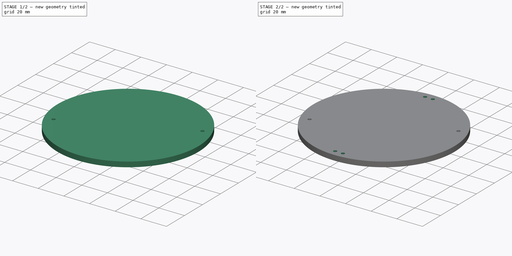
[diagram: build sequence overview — one tinted view per stage of 2, left to right]
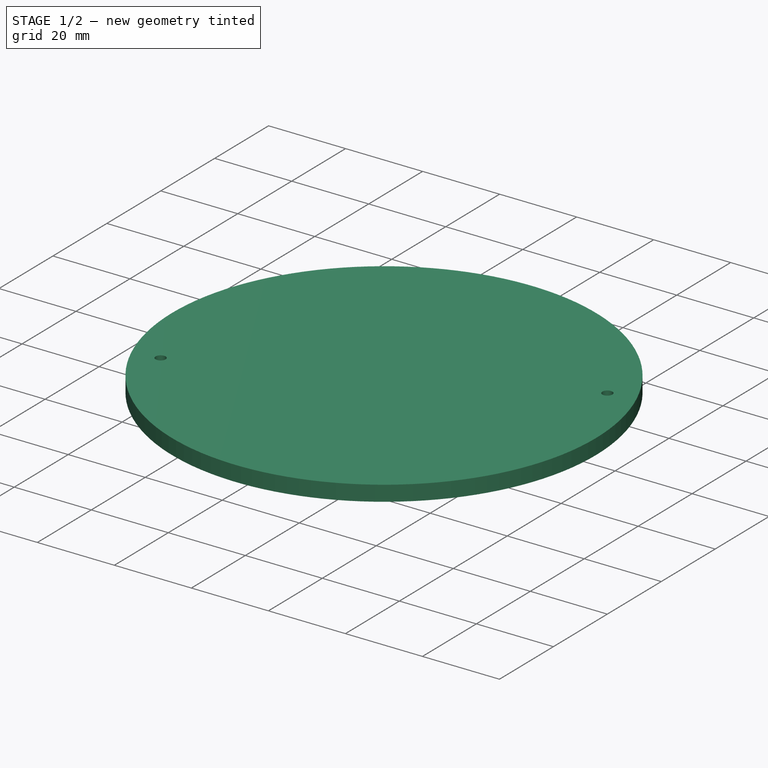
[diagram: stage 1 of 2 — iso view after this stage's code; geometry added in this stage tinted green]
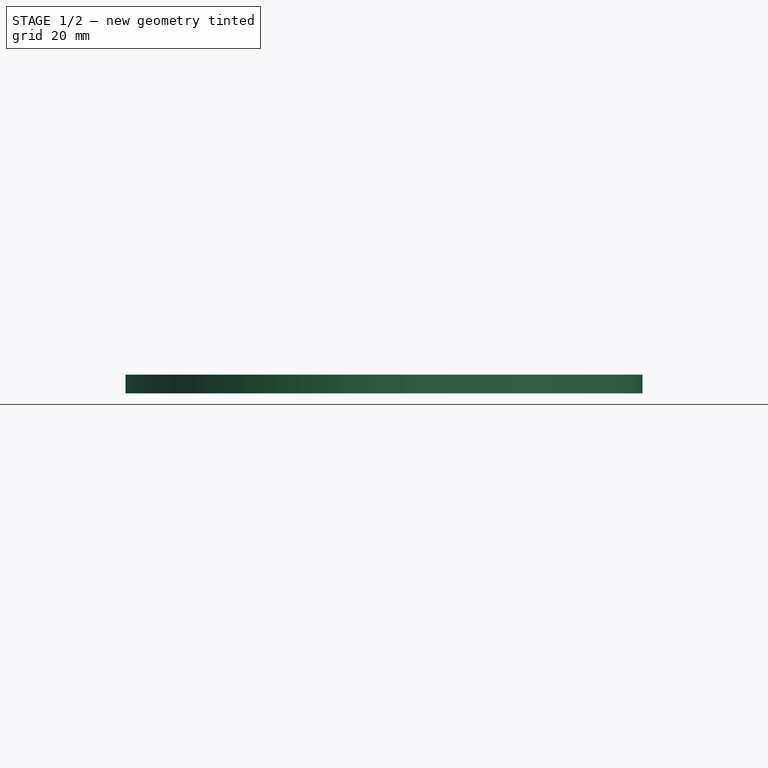
[diagram: stage 1 of 2 — front view after this stage's code; geometry added in this stage tinted green]
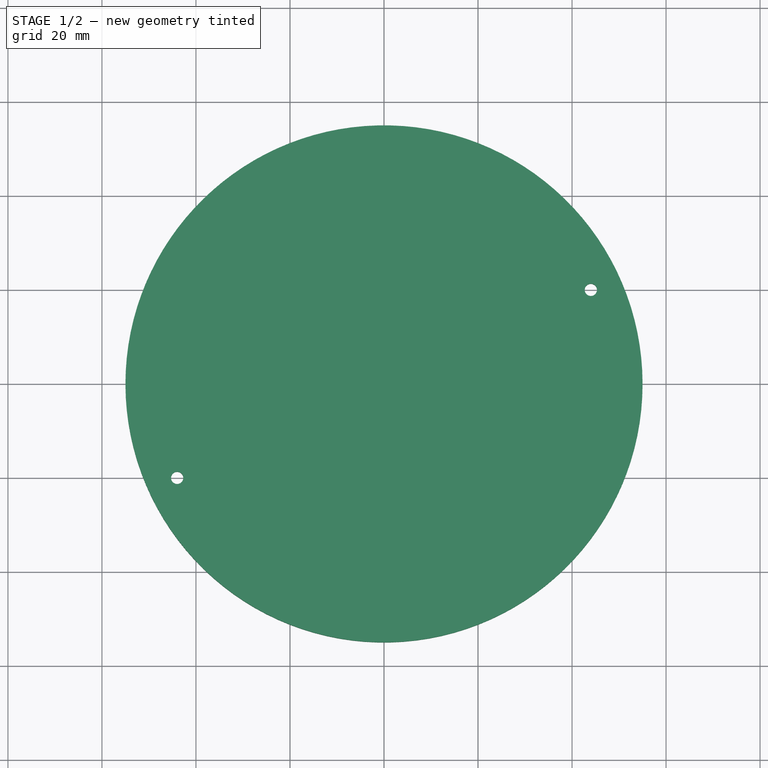
[diagram: stage 1 of 2 — top view after this stage's code; geometry added in this stage tinted green]
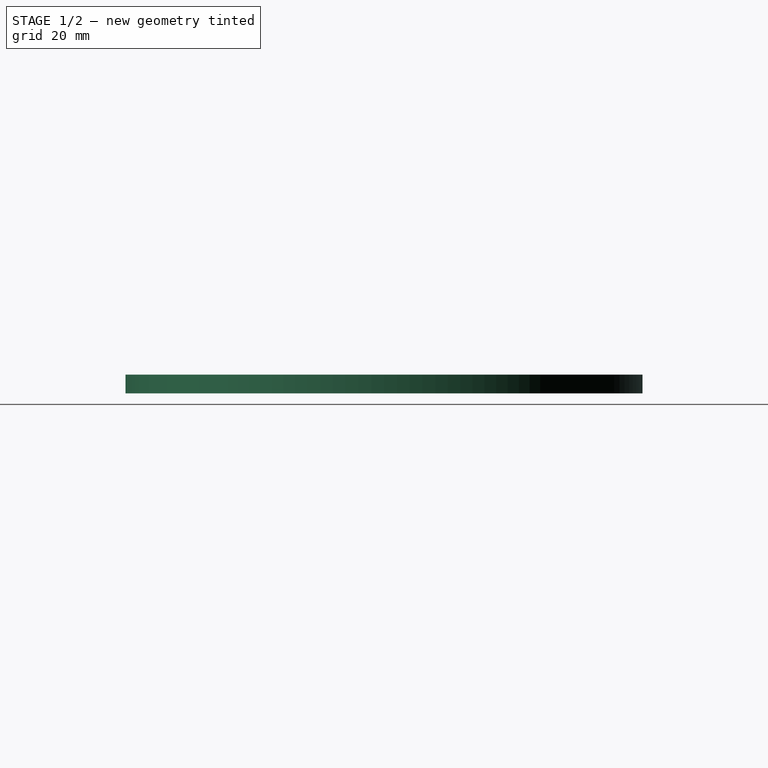
[diagram: stage 1 of 2 — right view after this stage's code; geometry added in this stage tinted green]
FCSTD DOCUMENT  (FreeCAD 0.21R33668 +26 (Git))
Label: board_top
License: All rights reserved
LicenseURL: https://en.wikipedia.org/wiki/All_rights_reserved
objects: Sketcher::SketchObject×3, PartDesign::Pocket×2, PartDesign::Pad×1, PartDesign::Body×1
note: 10 computed .brp shape members not serialized (recipe doc carries the construction recipe); baked Part::Feature solids carry a one-line shape summary decoded from their .brp

FEATURE [Sketcher::SketchObject] Sketch
  FullyConstrained = false
  MapMode = 5
  Support = -> [XY_Plane]
  sketch-geometry (2):
    g0: Circle CenterX=0 CenterY=0 CenterZ=0 NormalX=0 NormalY=0 NormalZ=1 AngleXU=0 Radius=55
    g1: GeomPoint X=-46.4818 Y=29.4015 Z=0
  constraints (3):
    c: Coincident(g0,g-1)
    c: PointOnObject(g1,g0)
    c: Distance(g1,g0) = 55
FEATURE [PartDesign::Pad] Pad
  Direction = (0,0,1)
  Length = 4
  Length2 = 10
  Profile = -> Sketch
  ReferenceAxis = -> Sketch [N_Axis]
  Type = 0
FEATURE [Sketcher::SketchObject] Sketch003
  FullyConstrained = false
  MapMode = 5
  Placement = pos=(0,0,4) rot=(0,0,1;0rad)
  sketch-geometry (10):
    g0: Circle CenterX=44 CenterY=20 CenterZ=0 NormalX=0 NormalY=0 NormalZ=1 AngleXU=0 Radius=5
    g1: Circle CenterX=-44 CenterY=-20 CenterZ=0 NormalX=0 NormalY=0 NormalZ=1 AngleXU=0 Radius=5
    g2: GeomPoint X=-39.0947 Y=-19.0316 Z=0
    g3: GeomPoint X=47.6682 Y=23.3977 Z=0
    g4: LineSegment StartX=0 StartY=-20 StartZ=0 EndX=-44 EndY=-20 EndZ=0
    g5: LineSegment StartX=0 StartY=20 StartZ=0 EndX=44 EndY=20 EndZ=0
    g6: Circle CenterX=-44 CenterY=-20 CenterZ=0 NormalX=0 NormalY=0 NormalZ=1 AngleXU=0 Radius=1.3
    g7: GeomPoint X=-43.3125 Y=-18.8967 Z=0
    g8: Circle CenterX=44 CenterY=20 CenterZ=0 NormalX=0 NormalY=0 NormalZ=1 AngleXU=0 Radius=1.3
    g9: GeomPoint X=43.0923 Y=20.9307 Z=0
  constraints (20):
    c: PointOnObject(g2,g1)
    c: PointOnObject(g3,g0)
    c: Distance(g3,g0) = 5
    c: Distance(g1,g2) = 5
    c: PointOnObject(g4,g-2)
    c: Coincident(g4,g1)
    c: Horizontal(g4)
    c: PointOnObject(g5,g-2)
    c: Coincident(g5,g0)
    c: Horizontal(g5)
    c: Distance(g4) = 44
    c: Distance(g5) = 44
    c: Distance(g5,g-1) = 20
    c: Distance(g-1,g4) = 20
    c: Coincident(g6,g1)
    c: PointOnObject(g7,g6)
    c: Coincident(g8,g0)
    c: PointOnObject(g9,g8)
    c: Distance(g9,g8) = 1.3
    c: Distance(g7,g6) = 1.3
FEATURE [PartDesign::Pocket] Pocket001
  BaseFeature = -> Pad
  Direction = (0,0,-1)
  Length = 5
  Length2 = 5
  Profile = -> Sketch003
  ReferenceAxis = -> Sketch003 [N_Axis]
  Type = 0
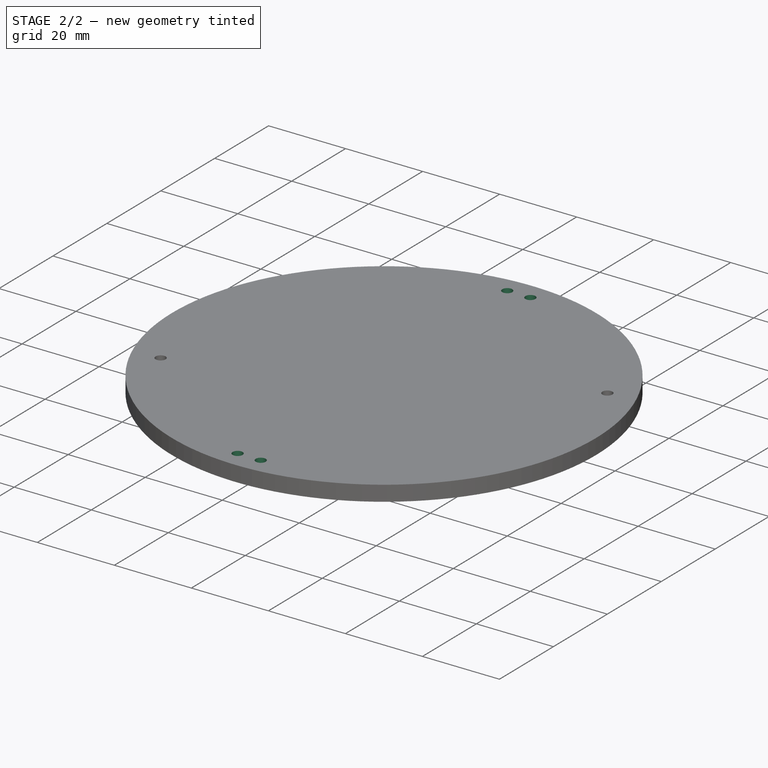
[diagram: stage 2 of 2 — iso view after this stage's code; geometry added in this stage tinted green]
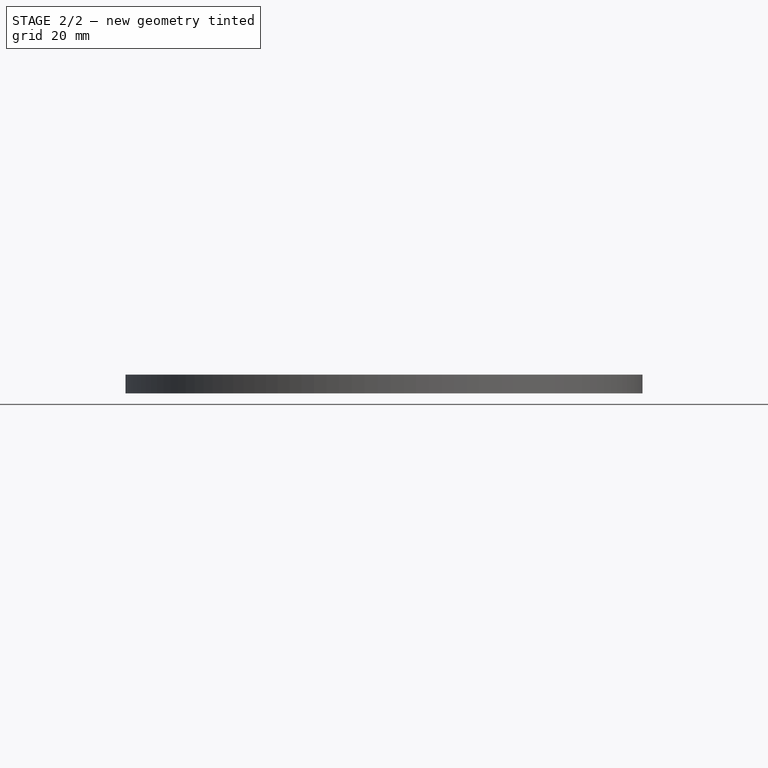
[diagram: stage 2 of 2 — front view after this stage's code; geometry added in this stage tinted green]
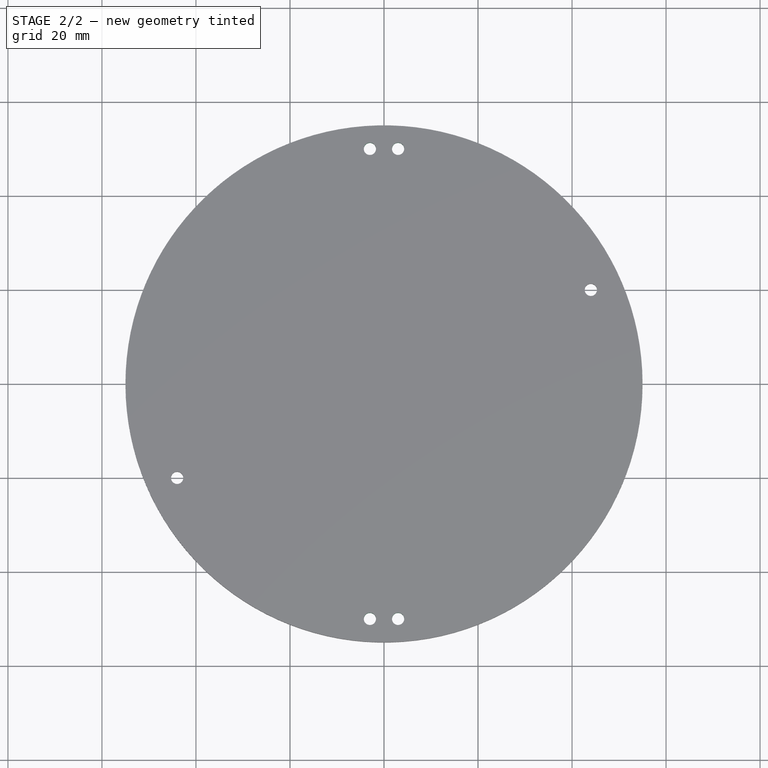
[diagram: stage 2 of 2 — top view after this stage's code; geometry added in this stage tinted green]
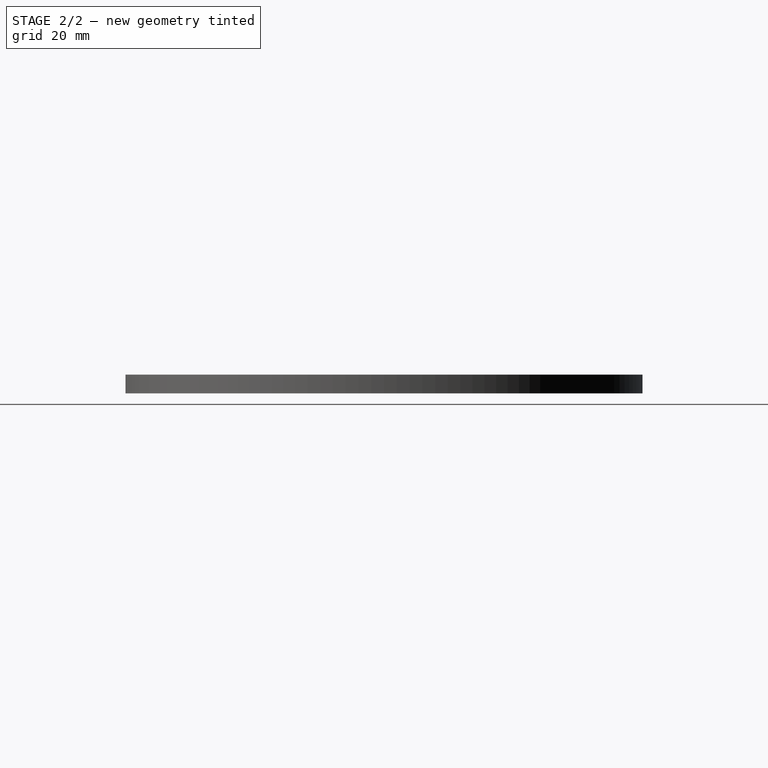
[diagram: stage 2 of 2 — right view after this stage's code; geometry added in this stage tinted green]
FEATURE [Sketcher::SketchObject] Sketch004
  FullyConstrained = false
  MapMode = 5
  Placement = pos=(0,0,4) rot=(0,0,1;0rad)
  Support = -> [Pocket001]
  sketch-geometry (14):
    g0: GeomPoint X=0 Y=50 Z=0
    g1: GeomPoint X=0 Y=-50 Z=0
    g2: LineSegment StartX=0 StartY=-50 StartZ=0 EndX=3 EndY=-50 EndZ=0
    g3: LineSegment StartX=0 StartY=-50 StartZ=0 EndX=-3 EndY=-50 EndZ=0
    g4: Circle CenterX=3 CenterY=-50 CenterZ=0 NormalX=0 NormalY=0 NormalZ=1 AngleXU=0 Radius=1.3
    g5: Circle CenterX=-3 CenterY=-50 CenterZ=0 NormalX=0 NormalY=0 NormalZ=1 AngleXU=0 Radius=1.3
    g6: GeomPoint X=-1.99174 Y=-49.1794 Z=0
    g7: GeomPoint X=2.30947 Y=-48.8986 Z=0
    g8: LineSegment StartX=0 StartY=50 StartZ=0 EndX=-3 EndY=50 EndZ=0
    g9: LineSegment StartX=0 StartY=50 StartZ=0 EndX=3 EndY=50 EndZ=0
    g10: Circle CenterX=-3 CenterY=50 CenterZ=0 NormalX=0 NormalY=0 NormalZ=1 AngleXU=0 Radius=1.3
    g11: Circle CenterX=3 CenterY=50 CenterZ=0 NormalX=0 NormalY=0 NormalZ=1 AngleXU=0 Radius=1.3
    g12: GeomPoint X=-2.06421 Y=50.9024 Z=0
    g13: GeomPoint X=2.70521 Y=51.2661 Z=0
  constraints (28):
    c: PointOnObject(g0,g-2)
    c: PointOnObject(g1,g-2)
    c: Distance(g0,g-1) = 50
    c: Distance(g1,g-1) = 50
    c: Coincident(g2,g1)
    c: Horizontal(g2)
    c: Coincident(g3,g2)
    c: Horizontal(g3)
    c: Distance(g2) = 3
    c: Distance(g3) = 3
    c: Coincident(g4,g2)
    c: Coincident(g5,g3)
    c: PointOnObject(g6,g5)
    c: PointOnObject(g7,g4)
    c: Distance(g5,g6) = 1.3
    c: Distance(g7,g4) = 1.3
    c: Coincident(g8,g0)
    c: Coincident(g9,g8)
    c: Horizontal(g8)
    c: Horizontal(g9)
    c: Coincident(g10,g8)
    c: Coincident(g11,g9)
    c: Distance(g9) = 3
    c: Distance(g8) = 3
    c: PointOnObject(g12,g10)
    c: PointOnObject(g13,g11)
    c: Distance(g10,g12) = 1.3
    c: Distance(g13,g11) = 1.3
FEATURE [PartDesign::Pocket] Pocket
  BaseFeature = -> Pocket001
  Direction = (0,0,-1)
  Length = 5
  Length2 = 5
  Profile = -> Sketch004
  ReferenceAxis = -> Sketch004 [N_Axis]
  Type = 0
FEATURE [PartDesign::Body] Body
  Group = -> [Sketch,Pad,Sketch003,Pocket001,Sketch004,Pocket]
  Origin = -> Origin
  Tip = -> Pocket
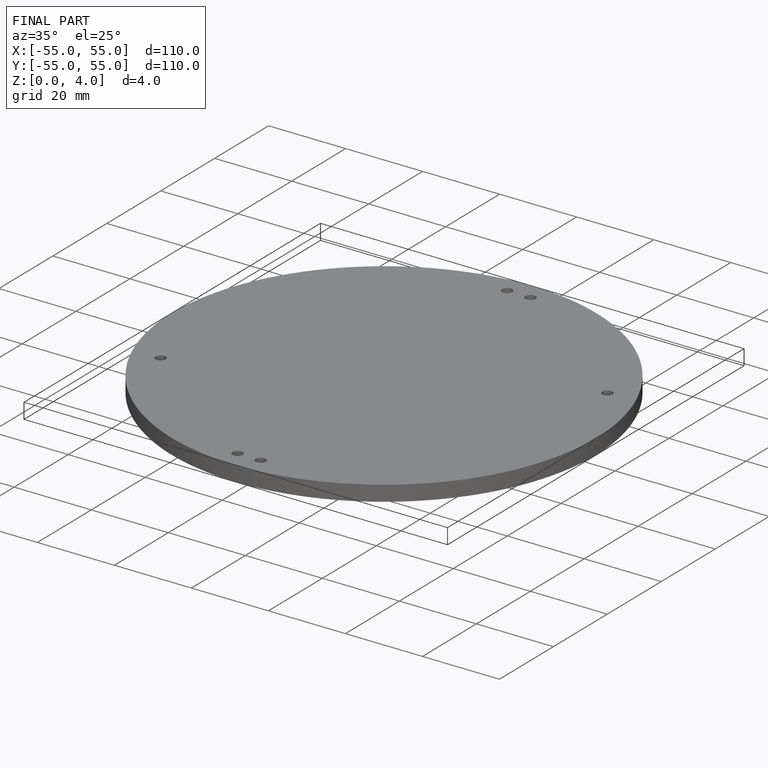
[diagram: finished part — iso view with bounding-box wireframe]
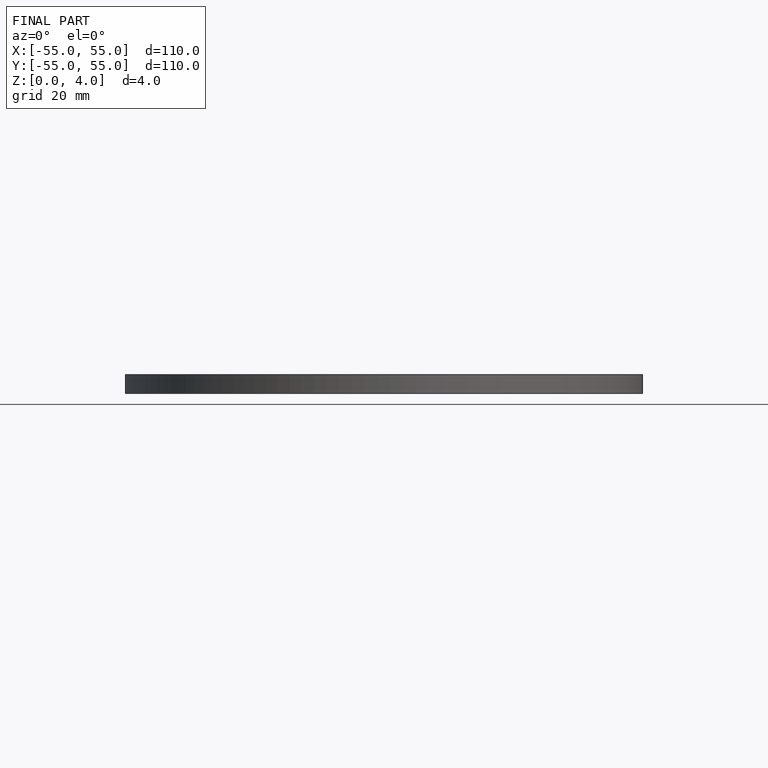
[diagram: finished part — front view with bounding-box wireframe]
